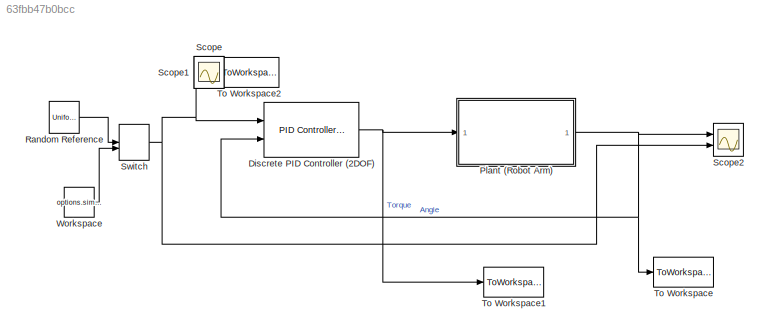
MODEL slx_63fbb47b0bcc
KIND model
CONFIG AbsTol = 1e-6
CONFIG EnableMultiTasking = off
CONFIG FixedStep = 0.02
CONFIG MaxStep = auto
CONFIG MinStep = auto
CONFIG RelTol = 1e-3
CONFIG SampleTimeConstraint = Unconstrained
CONFIG Solver = ode3
CONFIG SolverName = ode3
CONFIG StartTime = 0.0
CONFIG StopTime = options.T_train
BLOCK [Reference] Discrete PID Controller (2DOF)  REF=simulink/Continuous/PID Controller (2DOF)
  Ports = [2, 1]
  SourceBlock = simulink/Continuous/PID Controller (2DOF)
  SourceProductBaseCode = SL
  SourceProductName = Simulink
  SourceType = PID 2dof
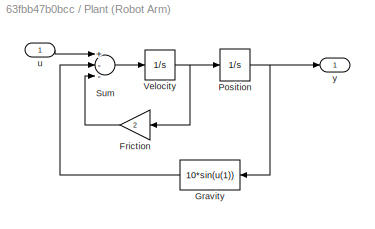
BLOCK [SubSystem] Plant (Robot Arm)
  Ports = [1, 1]
  RequestExecContextInheritance = off
BLOCK [Gain] Plant (Robot Arm)/Friction
  Gain = 2
BLOCK [Fcn] Plant (Robot Arm)/Gravity
  Expr = 10*sin(u(1))
BLOCK [Integrator] Plant (Robot Arm)/Position
  InitialCondition = options.sim_x0
  Ports = [1, 1]
  ZeroCross = off
BLOCK [Sum] Plant (Robot Arm)/Sum
  Inputs = +--
  Ports = [3, 1]
BLOCK [Integrator] Plant (Robot Arm)/Velocity
  Ports = [1, 1]
  ZeroCross = off
BLOCK [Inport] Plant (Robot Arm)/u
  IconDisplay = Port number
BLOCK [Outport] Plant (Robot Arm)/y
  IconDisplay = Port number
BLOCK [UniformRandomNumber] Random Reference
  Maximum = options.ref_max
  Minimum = options.ref_min
  SampleTime = options.ref_Ts
  Seed = randi(2^32,[1 ])
BLOCK [Scope] Scope
  Floating = off
  IOType = viewer
  NumInputPorts = 1
  Ports = []
  ScopeSpecificationString = Simulink.scopes.TimeScopeBlockCfg('CurrentConfiguration', extmgr.ConfigurationSet(extmgr.Configuration('Core','General UI',true),extmgr.Configuration('Core','Source UI',true),extmgr.Configuration('Sources','WiredSimulink',true),extmgr.Configuration('Visuals','Time Domain',true,'SerializedDisplays',{struct('MinYLimReal','-0.51512','MaxYLimReal','0.35127','YLabelReal','','MinYLimMag','0.00000','MaxY...<+1325ch>
BLOCK [Scope] Scope1
  Floating = off
  IOType = viewer
  NumInputPorts = 1
  Ports = []
  ScopeSpecificationString = Simulink.scopes.TimeScopeBlockCfg('CurrentConfiguration', extmgr.ConfigurationSet(extmgr.Configuration('Core','General UI',true),extmgr.Configuration('Core','Source UI',true),extmgr.Configuration('Sources','WiredSimulink',true,'DataLoggingVariableName','ScopeData1'),extmgr.Configuration('Visuals','Time Domain',true,'SerializedDisplays',{struct('MinYLimReal','-0.5058','MaxYLimReal','0.05632','YLabe...<+1355ch>
BLOCK [Scope] Scope2
  Floating = off
  NumInputPorts = 2
  Ports = [2]
  ScopeSpecificationString = Simulink.scopes.TimeScopeBlockCfg('CurrentConfiguration', extmgr.ConfigurationSet(extmgr.Configuration('Core','General UI',true),extmgr.Configuration('Core','Source UI',true),extmgr.Configuration('Sources','WiredSimulink',true,'DataLoggingVariableName','ScopeData1'),extmgr.Configuration('Visuals','Time Domain',true,'SerializedDisplays',{struct('MinYLimReal','-0.52699','MaxYLimReal','0.30298','YLab...<+1407ch>
BLOCK [ManualSwitch] Switch
BLOCK [ToWorkspace] To Workspace
  FixptAsFi = on
  MaxDataPoints = inf
  Ports = [1]
  SampleTime = -1
  Save2DSignal = 3-D array (concatenate along third dimension)
  SaveFormat = Structure With Time
  VariableName = y
BLOCK [ToWorkspace] To Workspace1
  FixptAsFi = on
  MaxDataPoints = inf
  Ports = [1]
  SampleTime = -1
  Save2DSignal = 3-D array (concatenate along third dimension)
  SaveFormat = Structure With Time
  VariableName = u
BLOCK [ToWorkspace] To Workspace2
  FixptAsFi = on
  MaxDataPoints = inf
  Ports = [1]
  SampleTime = -1
  Save2DSignal = 3-D array (concatenate along third dimension)
  SaveFormat = Structure With Time
  VariableName = ref
BLOCK [Constant] Workspace
  Value = options.sim_ref
NET Discrete PID Controller (2DOF):1 -> Plant (Robot Arm):1, To Workspace1:1
LINE Plant (Robot Arm)/Friction:1 -> Plant (Robot Arm)/Sum:3
LINE Plant (Robot Arm)/Gravity:1 -> Plant (Robot Arm)/Sum:2
NET Plant (Robot Arm)/Position:1 -> Plant (Robot Arm)/Gravity:1, Plant (Robot Arm)/y:1
LINE Plant (Robot Arm)/Sum:1 -> Plant (Robot Arm)/Velocity:1
NET Plant (Robot Arm)/Velocity:1 -> Plant (Robot Arm)/Friction:1, Plant (Robot Arm)/Position:1
LINE Plant (Robot Arm)/u:1 -> Plant (Robot Arm)/Sum:1
NET Plant (Robot Arm):1 -> Discrete PID Controller (2DOF):2, Scope2:1, To Workspace:1
LINE Random Reference:1 -> Switch:1
NET Switch:1 -> Discrete PID Controller (2DOF):1, Scope2:2, To Workspace2:1
LINE Workspace:1 -> Switch:2
note: NET lines group one-source signal fan-out (src -> all destinations, sorted); 1:1 wires keep LINE
